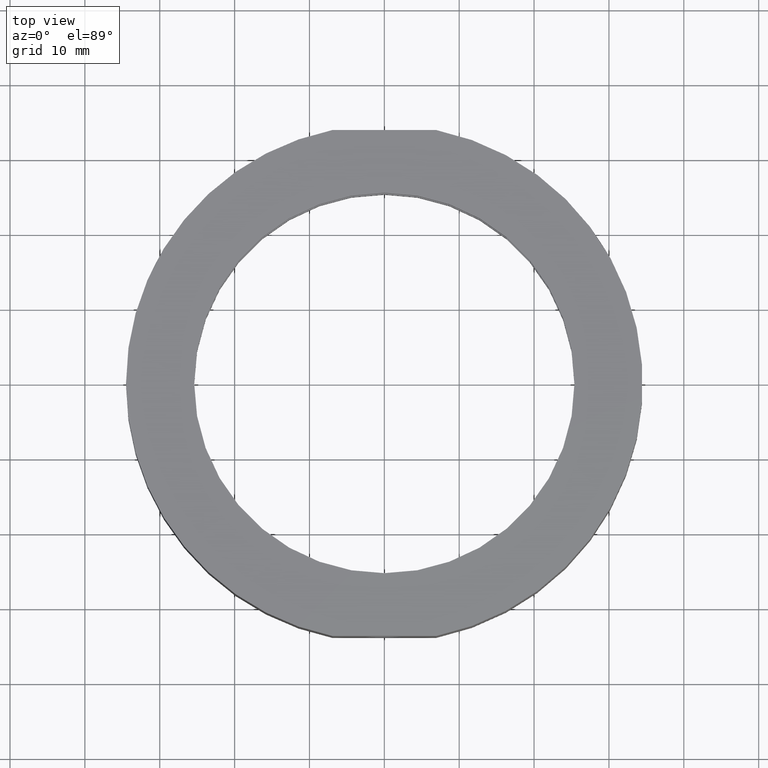
[diagram: clean part render]
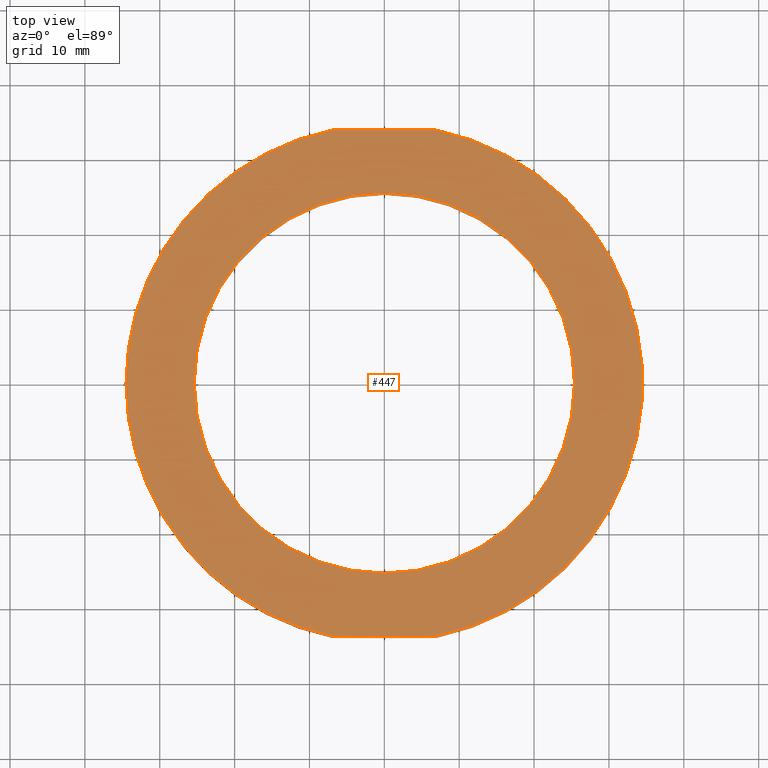
[diagram: same view with one face highlighted and labeled with its STEP entity id]
A machine part, top view. The second image highlights one B-rep face of the part: STEP entity #447.
In plain terms, the highlighted planar face has unit normal (-0, 0, -1).
Its self-contained STEP definition (entity closure, byte-faithful):
#1 = CARTESIAN_POINT ( 'NONE',  ( -34.49999999999999300, 0.0000000000000000000, 7.500000000000010700 ) ) ;
#16 = CIRCLE ( 'NONE', #837, 34.50000000000000000 ) ;
#20 = VERTEX_POINT ( 'NONE', #594 ) ;
#53 = CIRCLE ( 'NONE', #902, 34.50000000000000000 ) ;
#60 = DIRECTION ( 'NONE',  ( -1.000000000000000000, 0.0000000000000000000, 1.257045997084642900E-016 ) ) ;
#72 = DIRECTION ( 'NONE',  ( -1.224646799147350500E-016, -0.0000000000000000000, -1.000000000000000000 ) ) ;
#80 = FACE_BOUND ( 'NONE', #221, .T. ) ;
#153 = DIRECTION ( 'NONE',  ( -1.224646799147350500E-016, -0.0000000000000000000, -1.000000000000000000 ) ) ;
#203 = VECTOR ( 'NONE', #672, 1000.000000000000000 ) ;
#217 = CARTESIAN_POINT ( 'NONE',  ( 34.50000000000000700, -33.79999999999999700, 7.499999999999995600 ) ) ;
#221 = EDGE_LOOP ( 'NONE', ( #297, #998 ) ) ;
#269 = LINE ( 'NONE', #217, #614 ) ;
#297 = ORIENTED_EDGE ( 'NONE', *, *, #413, .T. ) ;
#320 = ORIENTED_EDGE ( 'NONE', *, *, #1098, .F. ) ;
#321 = CARTESIAN_POINT ( 'NONE',  ( 4.829892851045828800E-015, 0.0000000000000000000, 7.500000000000000000 ) ) ;
#328 = PLANE ( 'NONE',  #1112 ) ;
#408 = CARTESIAN_POINT ( 'NONE',  ( 4.829892851045828800E-015, 0.0000000000000000000, 7.500000000000000000 ) ) ;
#413 = EDGE_CURVE ( 'NONE', #454, #799, #1095, .T. ) ;
#436 = LINE ( 'NONE', #854, #203 ) ;
#437 = EDGE_CURVE ( 'NONE', #799, #454, #744, .T. ) ;
#445 = EDGE_CURVE ( 'NONE', #630, #502, #53, .T. ) ;
#447 = ADVANCED_FACE ( 'NONE', ( #930, #80 ), #328, .F. ) ;
#454 = VERTEX_POINT ( 'NONE', #772 ) ;
#459 = EDGE_CURVE ( 'NONE', #630, #536, #436, .T. ) ;
#475 = ORIENTED_EDGE ( 'NONE', *, *, #942, .T. ) ;
#492 = CARTESIAN_POINT ( 'NONE',  ( 6.914477565225041600, -33.79999999999999700, 7.500000000000006200 ) ) ;
#495 = DIRECTION ( 'NONE',  ( -1.000000000000000000, 0.0000000000000000000, 1.365923996832131900E-016 ) ) ;
#502 = VERTEX_POINT ( 'NONE', #492 ) ;
#508 = CARTESIAN_POINT ( 'NONE',  ( 4.829892851045829500E-015, 0.0000000000000000000, 7.500000000000007100 ) ) ;
#536 = VERTEX_POINT ( 'NONE', #1025 ) ;
#572 = EDGE_LOOP ( 'NONE', ( #960, #475, #1023, #1020, #320 ) ) ;
#579 = DIRECTION ( 'NONE',  ( -1.000000000000000000, 0.0000000000000000000, 1.224646799147350500E-016 ) ) ;
#582 = DIRECTION ( 'NONE',  ( -1.000000000000000000, 0.0000000000000000000, 1.365923996832131900E-016 ) ) ;
#587 = CARTESIAN_POINT ( 'NONE',  ( 34.50000000000000700, 0.0000000000000000000, 7.499999999999995600 ) ) ;
#594 = CARTESIAN_POINT ( 'NONE',  ( -6.914477565225031900, -33.79999999999999700, 7.500000000000000000 ) ) ;
#614 = VECTOR ( 'NONE', #646, 1000.000000000000000 ) ;
#617 = AXIS2_PLACEMENT_3D ( 'NONE', #688, #153, #1116 ) ;
#630 = VERTEX_POINT ( 'NONE', #1046 ) ;
#646 = DIRECTION ( 'NONE',  ( 1.000000000000000000, 0.0000000000000000000, -1.224646799147350500E-016 ) ) ;
#650 = CIRCLE ( 'NONE', #617, 34.50000000000000000 ) ;
#654 = VERTEX_POINT ( 'NONE', #1 ) ;
#672 = DIRECTION ( 'NONE',  ( -1.000000000000000000, 0.0000000000000000000, 1.224646799147350500E-016 ) ) ;
#679 = DIRECTION ( 'NONE',  ( -1.224646799147350500E-016, -0.0000000000000000000, -1.000000000000000000 ) ) ;
#688 = CARTESIAN_POINT ( 'NONE',  ( 4.829892851045829500E-015, 0.0000000000000000000, 7.500000000000007100 ) ) ;
#744 = CIRCLE ( 'NONE', #1053, 25.39999999999999500 ) ;
#759 = DIRECTION ( 'NONE',  ( -1.224646799147350500E-016, -0.0000000000000000000, -1.000000000000000000 ) ) ;
#760 = DIRECTION ( 'NONE',  ( -1.224646799147350500E-016, -0.0000000000000000000, -1.000000000000000000 ) ) ;
#772 = CARTESIAN_POINT ( 'NONE',  ( -25.39999999999999100, 0.0000000000000000000, 7.500000000000003600 ) ) ;
#799 = VERTEX_POINT ( 'NONE', #1000 ) ;
#837 = AXIS2_PLACEMENT_3D ( 'NONE', #1109, #759, #929 ) ;
#854 = CARTESIAN_POINT ( 'NONE',  ( 34.50000000000000700, 33.79999999999999700, 7.499999999999995600 ) ) ;
#902 = AXIS2_PLACEMENT_3D ( 'NONE', #508, #760, #60 ) ;
#929 = DIRECTION ( 'NONE',  ( -1.000000000000000000, 0.0000000000000000000, 1.257045997084642900E-016 ) ) ;
#930 = FACE_OUTER_BOUND ( 'NONE', #572, .T. ) ;
#942 = EDGE_CURVE ( 'NONE', #20, #502, #269, .T. ) ;
#960 = ORIENTED_EDGE ( 'NONE', *, *, #1017, .F. ) ;
#992 = AXIS2_PLACEMENT_3D ( 'NONE', #321, #72, #582 ) ;
#998 = ORIENTED_EDGE ( 'NONE', *, *, #437, .T. ) ;
#1000 = CARTESIAN_POINT ( 'NONE',  ( 25.39999999999999900, 3.110602869834276500E-015, 7.499999999999996400 ) ) ;
#1017 = EDGE_CURVE ( 'NONE', #20, #654, #16, .T. ) ;
#1020 = ORIENTED_EDGE ( 'NONE', *, *, #459, .T. ) ;
#1023 = ORIENTED_EDGE ( 'NONE', *, *, #445, .F. ) ;
#1025 = CARTESIAN_POINT ( 'NONE',  ( -6.914477565225031000, 33.79999999999999700, 7.500000000000007100 ) ) ;
#1046 = CARTESIAN_POINT ( 'NONE',  ( 6.914477565225042500, 33.79999999999999700, 7.500000000000000000 ) ) ;
#1053 = AXIS2_PLACEMENT_3D ( 'NONE', #408, #679, #495 ) ;
#1095 = CIRCLE ( 'NONE', #992, 25.39999999999999500 ) ;
#1098 = EDGE_CURVE ( 'NONE', #654, #536, #650, .T. ) ;
#1109 = CARTESIAN_POINT ( 'NONE',  ( 4.829892851045829500E-015, 0.0000000000000000000, 7.500000000000007100 ) ) ;
#1112 = AXIS2_PLACEMENT_3D ( 'NONE', #587, #1119, #579 ) ;
#1116 = DIRECTION ( 'NONE',  ( -1.000000000000000000, 0.0000000000000000000, 1.257045997084642900E-016 ) ) ;
#1119 = DIRECTION ( 'NONE',  ( -1.224646799147350500E-016, 0.0000000000000000000, -1.000000000000000000 ) ) ;